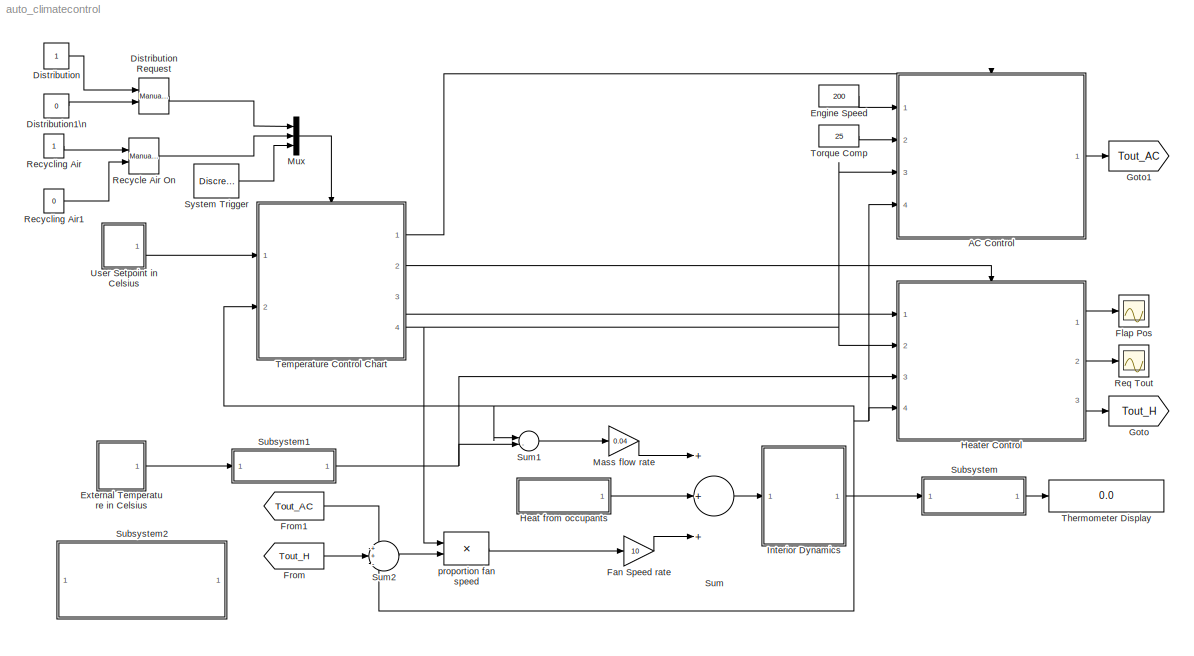
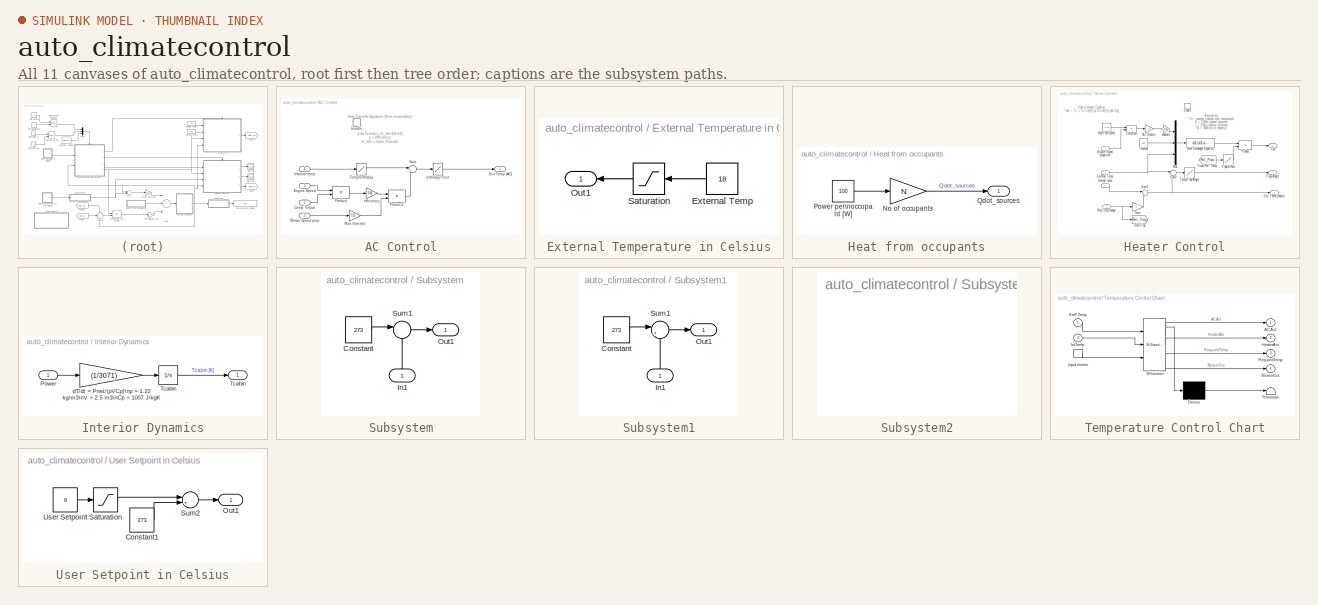
[diagram: thumbnail index - all 11 canvases of the model, root first then tree order]
MODEL auto_climatecontrol
KIND model
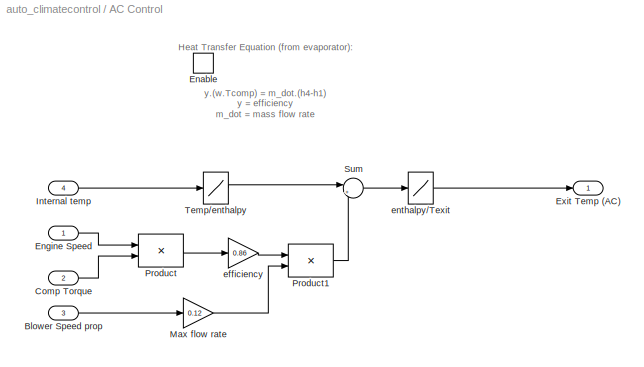
BLOCK [SubSystem] AC Control
  MinAlgLoopOccurrences = off
  Ports = [4, 1, 1]
  PropExecContextAcrossSSBoundary = on
  RTWSystemCode = Auto
  TreatAsAtomicUnit = on
BLOCK [Inport] AC Control/Blower Speed prop
  IconDisplay = Port number
  LatchInput = off
  Port = 3
BLOCK [Inport] AC Control/Comp Torque
  IconDisplay = Port number
  LatchInput = off
  Port = 2
BLOCK [EnablePort] AC Control/Enable
  Ports = []
  StatesWhenEnabling = reset
  ZeroCross = off
BLOCK [Inport] AC Control/Engine Speed
  IconDisplay = Port number
  LatchInput = off
  Port = 1
BLOCK [Outport] AC Control/Exit Temp (AC)
  IconDisplay = Port number
  InitialOutput = 0
  OutputWhenDisabled = reset
BLOCK [Inport] AC Control/Internal temp
  IconDisplay = Port number
  LatchInput = off
  Port = 4
BLOCK [Gain] AC Control/Max flow rate
  Gain = 0.12
BLOCK [Product] AC Control/Product
  Ports = [2, 1]
  RndMeth = Floor
BLOCK [Product] AC Control/Product1
  Inputs = */
  Ports = [2, 1]
  RndMeth = Floor
BLOCK [Sum] AC Control/Sum
  IconShape = round
  Inputs = |+-
  Ports = [2, 1]
BLOCK [Lookup] AC Control/Temp//enthalpy
  DialogController = Simulink.DDGSource
  InputValues = [220 230 240 250 260 270 280 285 290 295 300 305 310 315 320]
  OutputValues = [219.97 230.02 240.02 250.05 260.09 270.11 280.13 285.14 290.16 295.17 300.19 305.22 310.24 315.27 320.29]
BLOCK [Gain] AC Control/efficiency
  Gain = 0.86
BLOCK [Lookup] AC Control/enthalpy//Texit
  DialogController = Simulink.DDGSource
  InputValues = [ 219.97 230.02 240.02 250.05 260.09 270.11 280.13 285.14 290.16 295.17 300.19 305.22 310.24 315.27 320.29]
  OutputValues = [220 230 240 250 260 270 280 285 290 295 300 305 310 315 320]
BLOCK [Constant] Distribution 
BLOCK [Reference] Distribution Request  REF=simulink/Signal\nRouting/Manual Switch
  Ports = [2, 1]
  ShowPortLabels = on
  SourceBlock = simulink/Signal\nRouting/Manual Switch
  SourceType = Manual Switch
  action = 0
  sw = 0
BLOCK [Constant] Distribution1\n
  Value = 0
BLOCK [Constant] Engine Speed
  Value = 200
BLOCK [SubSystem] External Temperature in Celsius
  MaskDisplay = disp(x);
  MaskEnableString = on
  MaskIconFrame = on
  MaskIconOpaque = on
  MaskIconRotate = none
  MaskIconUnits = autoscale
  MaskInitialization = set_param('auto_climatecontrol/External Temperature in Celsius/External Temp','Value',num2str(x))\nexternal_temp_limit1\n
  MaskPromptString = Enter the external temperature
  MaskStyleString = edit
  MaskToolTipString = on
  MaskTunableValueString = on
  MaskType = variable
  MaskValueString = 18
  MaskVariables = x=@1;
  MaskVisibilityString = on
  MinAlgLoopOccurrences = off
  Ports = [0, 1]
  PropExecContextAcrossSSBoundary = on
  RTWSystemCode = Auto
  TreatAsAtomicUnit = off
BLOCK [Constant] External Temperature in Celsius/External Temp
  Value = 18
BLOCK [Outport] External Temperature in Celsius/Out1
  IconDisplay = Port number
BLOCK [Saturate] External Temperature in Celsius/Saturation
  LowerLimit = -99
  UpperLimit = 100
BLOCK [Gain] Fan Speed rate
  Gain = 10
BLOCK [Scope] Flap Pos
  DataFormat = StructureWithTime
  NumInputPorts = 1
  Ports = [1]
  YMax = 41.22
  YMin = 41.175
BLOCK [From] From
  CloseFcn = tagdialog Close
  DialogController = Simulink.DDGSource
  GotoTag = Tout_H
BLOCK [From] From1
  CloseFcn = tagdialog Close
  DialogController = Simulink.DDGSource
  GotoTag = Tout_AC
BLOCK [Goto] Goto
  DialogController = Simulink.DDGSource
  GotoTag = Tout_H
  TagVisibility = local
BLOCK [Goto] Goto1
  DialogController = Simulink.DDGSource
  GotoTag = Tout_AC
  TagVisibility = local
BLOCK [SubSystem] Heat from occupants
  AttributesFormatString = No. of occupants: %<N>
  MaskDisplay = disp('Heat Sources')
  MaskEnableString = on
  MaskIconFrame = on
  MaskIconOpaque = on
  MaskIconRotate = none
  MaskIconUnits = autoscale
  MaskPromptString = Number of occupants:
  MaskStyleString = edit
  MaskToolTipString = on
  MaskTunableValueString = on
  MaskType = Heat from occupants
  MaskValueString = 1
  MaskVariables = N=@1;
  MaskVisibilityString = on
  MinAlgLoopOccurrences = off
  Ports = [0, 1]
  PropExecContextAcrossSSBoundary = on
  RTWSystemCode = Auto
  TreatAsAtomicUnit = off
BLOCK [Gain] Heat from occupants/No of occupants
  Gain = N
BLOCK [Constant] Heat from occupants/Power per\noccupant [W]
  Value = 100
BLOCK [Outport] Heat from occupants/Qdot_sources
  IconDisplay = Port number
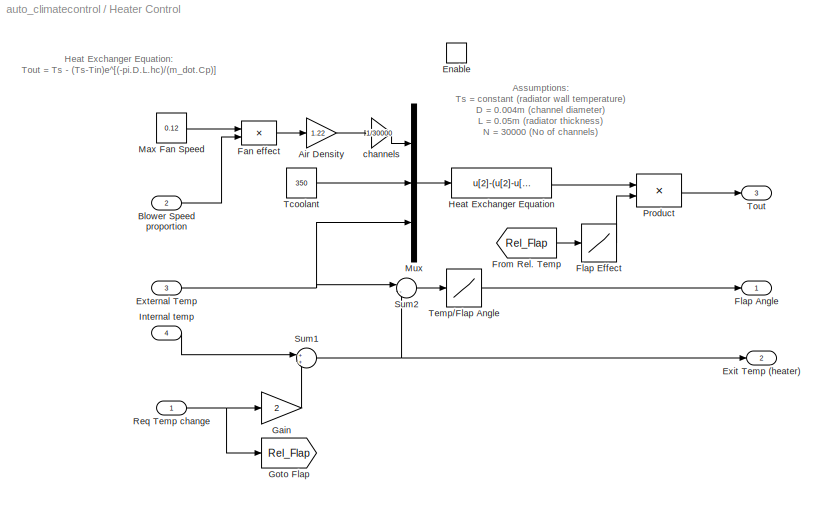
BLOCK [SubSystem] Heater Control
  MinAlgLoopOccurrences = off
  Ports = [4, 3, 1]
  PropExecContextAcrossSSBoundary = on
  RTWSystemCode = Auto
  TreatAsAtomicUnit = on
BLOCK [Gain] Heater Control/Air Density
  Gain = 1.22
BLOCK [Inport] Heater Control/Blower Speed proportion
  IconDisplay = Port number
  LatchInput = off
  Port = 2
BLOCK [EnablePort] Heater Control/Enable
  Ports = []
  StatesWhenEnabling = reset
  ZeroCross = off
BLOCK [Outport] Heater Control/Exit Temp (heater)
  IconDisplay = Port number
  InitialOutput = 0
  OutputWhenDisabled = reset
  Port = 2
BLOCK [Inport] Heater Control/External Temp
  IconDisplay = Port number
  LatchInput = off
  Port = 3
BLOCK [Product] Heater Control/Fan effect
  Ports = [2, 1]
  RndMeth = Floor
BLOCK [Outport] Heater Control/Flap Angle
  IconDisplay = Port number
  InitialOutput = 0
  OutputWhenDisabled = reset
BLOCK [Lookup] Heater Control/Flap Effect
  DialogController = Simulink.DDGSource
  InputValues = [0 3 5 10 50  90 100 200 ]
  OutputValues = [0 300 100  10 10  10 3 1]
BLOCK [From] Heater Control/From Rel. Temp
  CloseFcn = tagdialog Close
  DialogController = Simulink.DDGSource
  GotoTag = Rel_Flap
BLOCK [Gain] Heater Control/Gain
  Gain = 2
BLOCK [Goto] Heater Control/Goto Flap
  DialogController = Simulink.DDGSource
  GotoTag = Rel_Flap
  TagVisibility = local
BLOCK [Fcn] Heater Control/Heat Exchanger Equation
  Expr = u[2]-(u[2]-u[3])*exp(-(pi*0.004*0.05*23.8)/(u[1]*1007))
BLOCK [Inport] Heater Control/Internal temp
  IconDisplay = Port number
  LatchInput = off
  Port = 4
BLOCK [Constant] Heater Control/Max Fan Speed
  Value = 0.12
BLOCK [Mux] Heater Control/Mux
  DisplayOption = bar
  Inputs = 3
  Ports = [3, 1]
BLOCK [Product] Heater Control/Product
  Ports = [2, 1]
  RndMeth = Floor
BLOCK [Inport] Heater Control/Req Temp change
  IconDisplay = Port number
  LatchInput = off
  Port = 1
BLOCK [Sum] Heater Control/Sum1
  IconShape = round
  Ports = [2, 1]
BLOCK [Sum] Heater Control/Sum2
  IconShape = round
  Inputs = |-+
  Ports = [2, 1]
BLOCK [Constant] Heater Control/Tcoolant 
  Value = 350
BLOCK [Lookup] Heater Control/Temp//Flap Angle
  DialogController = Simulink.DDGSource
  InputValues = [0 10 20 30 40 50 60 75 100 200]
  OutputValues = [0 20 30 45 60 75 90 90 90 90]
BLOCK [Outport] Heater Control/Tout
  IconDisplay = Port number
  InitialOutput = 0
  OutputWhenDisabled = reset
  Port = 3
BLOCK [Gain] Heater Control/channels
  Gain = 1/30000
BLOCK [SubSystem] Interior Dynamics
  MaskDisplay = image(imread('car_int.jpg'))
  MaskIconFrame = off
  MaskIconOpaque = on
  MaskIconRotate = none
  MaskIconUnits = autoscale
  MaskType = Vehicle Cabin Dynamics
  MinAlgLoopOccurrences = off
  Ports = [1, 1]
  PropExecContextAcrossSSBoundary = on
  RTWSystemCode = Auto
  TreatAsAtomicUnit = off
BLOCK [Inport] Interior Dynamics/Power
  IconDisplay = Port number
  LatchInput = off
  Port = 1
BLOCK [Integrator] Interior Dynamics/Tcabin
  InitialCondition = 291
  Ports = [1, 1]
  ZeroCross = off
BLOCK [Outport] Interior Dynamics/Tcabin 
  IconDisplay = Port number
BLOCK [Gain] Interior Dynamics/dT//dt = Pnet//(pVCp)\np = 1.22 kg//m3\nV = 2.5 m3\nCp = 1007 J//kgK
  Gain = (1/3071)
BLOCK [Gain] Mass flow rate
  Gain = 0.04
BLOCK [Mux] Mux
  DisplayOption = bar
  Inputs = 3
  Ports = [3, 1]
BLOCK [Reference] Recycle Air On  REF=simulink/Signal\nRouting/Manual Switch
  Ports = [2, 1]
  ShowPortLabels = on
  SourceBlock = simulink/Signal\nRouting/Manual Switch
  SourceType = Manual Switch
  action = 0
  sw = 0
BLOCK [Constant] Recycling Air
BLOCK [Constant] Recycling Air1
  Value = 0
BLOCK [Scope] Req Tout
  DataFormat = StructureWithTime
  NumInputPorts = 1
  Ports = [1]
  SaveName = ScopeData1
  YMax = 41.22
  YMin = 41.175
BLOCK [SubSystem] Subsystem
  MaskDisplay = disp('Kelvin to Celsius')
  MaskIconFrame = on
  MaskIconOpaque = on
  MaskIconRotate = none
  MaskIconUnits = autoscale
  MinAlgLoopOccurrences = off
  Ports = [1, 1]
  PropExecContextAcrossSSBoundary = on
  RTWSystemCode = Auto
  TreatAsAtomicUnit = off
BLOCK [Constant] Subsystem/Constant
  Value = 273
BLOCK [Inport] Subsystem/In1
  IconDisplay = Port number
  LatchInput = off
  Port = 1
BLOCK [Outport] Subsystem/Out1
  IconDisplay = Port number
BLOCK [Sum] Subsystem/Sum1
  IconShape = round
  Inputs = |-+
  Ports = [2, 1]
BLOCK [SubSystem] Subsystem1
  MaskDisplay = disp('Celsius to Kelvin')
  MaskIconFrame = on
  MaskIconOpaque = on
  MaskIconRotate = none
  MaskIconUnits = autoscale
  MinAlgLoopOccurrences = off
  Ports = [1, 1]
  PropExecContextAcrossSSBoundary = on
  RTWSystemCode = Auto
  TreatAsAtomicUnit = off
BLOCK [Constant] Subsystem1/Constant
  Value = 273
BLOCK [Inport] Subsystem1/In1
  IconDisplay = Port number
  LatchInput = off
  Port = 1
BLOCK [Outport] Subsystem1/Out1
  IconDisplay = Port number
BLOCK [Sum] Subsystem1/Sum1
  IconShape = round
  Inputs = |++
  Ports = [2, 1]
BLOCK [SubSystem] Subsystem2
  AttributesFormatString = \\n
  MaskDisplay = disp('Double click\\nhere for\\n Model Information')
  MaskIconFrame = on
  MaskIconOpaque = on
  MaskIconRotate = none
  MaskIconUnits = autoscale
  MaskInitialization = % t1=matlabroot;\n%cd(t1)\n%test123=which('docCC_file.html','-all');\n%web(char(test123));\n
  MinAlgLoopOccurrences = off
  OpenFcn = docfile=which('auto_climatecontrol.html','-all');\nweb(char(docfile));
  Ports = []
  PropExecContextAcrossSSBoundary = on
  RTWSystemCode = Auto
  TreatAsAtomicUnit = off
BLOCK [Sum] Sum
  Inputs = +++
  Ports = [3, 1]
BLOCK [Sum] Sum1
  IconShape = round
  Inputs = |-+
  Ports = [2, 1]
BLOCK [Sum] Sum2
  IconShape = round
  Inputs = ++-
  Ports = [3, 1]
BLOCK [DiscretePulseGenerator] System Trigger
  Period = 1/60
  Ports = [0, 1]
  PulseType = Time based
  PulseWidth = 50
BLOCK [SubSystem] Temperature Control Chart
  MaskDescription = Stateflow diagram
  MaskDisplay = plot(sf('Private','sfblk','xIcon'),sf('Private','sfblk','yIcon'));text(0.5,0,sf('Private', 'sfblk', 'tIcon'),'HorizontalAl','Center','VerticalAl','Bottom');
  MaskIconFrame = off
  MaskIconOpaque = off
  MaskIconRotate = none
  MaskIconUnits = autoscale
  MaskSelfModifiable = on
  MaskType = Stateflow
  MinAlgLoopOccurrences = off
  Ports = [2, 4, 0, 1]
  PropExecContextAcrossSSBoundary = on
  RTWSystemCode = Auto
  TreatAsAtomicUnit = on
BLOCK [Demux] Temperature Control Chart/ Demux 
  Outputs = 1
  Ports = [1, 1]
BLOCK [S-Function] Temperature Control Chart/ SFunction 
  FunctionName = sf_sfun
  PortCounts = [3 5]
  Ports = [3, 5]
  Tag = Stateflow S-Function auto_climatecontrol 1
BLOCK [Terminator] Temperature Control Chart/ Terminator 
BLOCK [TriggerPort] Temperature Control Chart/ input events 
  Ports = [0, 1]
  ShowOutputPort = on
  TriggerType = either
  ZeroCross = off
BLOCK [Outport] Temperature Control Chart/ACAct
  IconDisplay = Port number
BLOCK [Outport] Temperature Control Chart/BlowerOut
  IconDisplay = Port number
  Port = 4
BLOCK [Outport] Temperature Control Chart/HeaterAct
  IconDisplay = Port number
  Port = 2
BLOCK [Inport] Temperature Control Chart/IntTemp
  IconDisplay = Port number
  LatchInput = off
  Port = 2
BLOCK [Outport] Temperature Control Chart/RequiredTemp
  IconDisplay = Port number
  Port = 3
BLOCK [Inport] Temperature Control Chart/SetPTemp
  IconDisplay = Port number
  LatchInput = off
  Port = 1
BLOCK [Display] Thermometer Display
  Decimation = 1
  Ports = [1]
BLOCK [Constant] Torque Comp
  Value = 25
BLOCK [SubSystem] User Setpoint in Celsius
  MaskDisplay = disp(num2str(USet))
  MaskEnableString = on
  MaskIconFrame = on
  MaskIconOpaque = on
  MaskIconRotate = none
  MaskIconUnits = autoscale
  MaskInitialization = set_param('auto_climatecontrol/User Setpoint in Celsius/User Setpoint','Value',num2str(USet))
  MaskPromptString = Enter the Temperature you require
  MaskStyleString = edit
  MaskToolTipString = on
  MaskTunableValueString = on
  MaskValueString = 9
  MaskVariables = USet=@1;
  MaskVisibilityString = on
  MinAlgLoopOccurrences = off
  Ports = [0, 1]
  PropExecContextAcrossSSBoundary = on
  RTWSystemCode = Auto
  TreatAsAtomicUnit = off
BLOCK [Constant] User Setpoint in Celsius/Constant1
  Value = 273
BLOCK [Outport] User Setpoint in Celsius/Out1
  IconDisplay = Port number
BLOCK [Saturate] User Setpoint in Celsius/Saturation
  LowerLimit = -99
  UpperLimit = 100
BLOCK [Sum] User Setpoint in Celsius/Sum2
  IconShape = round
  Inputs = |++
  Ports = [2, 1]
BLOCK [Constant] User Setpoint in Celsius/User Setpoint
  Value = 9
BLOCK [Product] proportion fan speed
  Ports = [2, 1]
  RndMeth = Floor
ANNOTATION AC Control: Heat Transfer Equation (from evaporator):\n\ny.(w.Tcomp) = m_dot.(h4-h1)\n\ny = efficiency\nm_dot = mass flow rate\nw = speed of the engine\nTcomp = compressor torque\nh4, h1 = enthalpy
ANNOTATION Heater Control: Assumptions:\nTs = constant (radiator wall temperature) \nD = 0.004m (channel diameter)\nL = 0.05m (radiator thickness)\nN = 30000 (No of channels)\n\nk = 0.026 W/mK = constant (thermal conductivity of air)\nCp = 1007 J/kgK = constant (specific heat of air)\nLaminar flow (hc = 3.66(k/D) = 23.8 W/m2K )
ANNOTATION Heater Control: Heat Exchanger Equation:\nTout = Ts - (Ts-Tin)e^[(-pi.D.L.hc)/(m_dot.Cp)]
LINE AC Control/Blower Speed prop:1 -> AC Control/Max flow rate:1
LINE AC Control/Comp Torque:1 -> AC Control/Product:2
LINE AC Control/Engine Speed:1 -> AC Control/Product:1
LINE AC Control/Internal temp:1 -> AC Control/Temp//enthalpy:1
LINE AC Control/Max flow rate:1 -> AC Control/Product1:2
LINE AC Control/Product1:1 -> AC Control/Sum:2
LINE AC Control/Product:1 -> AC Control/efficiency:1
LINE AC Control/Sum:1 -> AC Control/enthalpy//Texit:1
LINE AC Control/Temp//enthalpy:1 -> AC Control/Sum:1
LINE AC Control/efficiency:1 -> AC Control/Product1:1
LINE AC Control/enthalpy//Texit:1 -> AC Control/Exit Temp (AC):1
LINE AC Control:1 -> Goto1:1
LINE Distribution :1 -> Distribution Request:1
LINE Distribution Request:1 -> Mux:1
LINE Distribution1\n:1 -> Distribution Request:2
LINE Engine Speed:1 -> AC Control:1
LINE External Temperature in Celsius/External Temp:1 -> External Temperature in Celsius/Saturation:1
LINE External Temperature in Celsius/Saturation:1 -> External Temperature in Celsius/Out1:1
LINE External Temperature in Celsius:1 -> Subsystem1:1
LINE Fan Speed rate:1 -> Sum:3
LINE From1:1 -> Sum2:1
LINE From:1 -> Sum2:2
LINE Heat from occupants/No of occupants:1 -> Heat from occupants/Qdot_sources:1
LINE Heat from occupants/Power per\noccupant [W]:1 -> Heat from occupants/No of occupants:1
LINE Heat from occupants:1 -> Sum:2
LINE Heater Control/Air Density:1 -> Heater Control/channels:1
LINE Heater Control/Blower Speed proportion:1 -> Heater Control/Fan effect:2
NET Heater Control/External Temp:1 -> Heater Control/Mux:3, Heater Control/Sum2:1
LINE Heater Control/Fan effect:1 -> Heater Control/Air Density:1
LINE Heater Control/Flap Effect:1 -> Heater Control/Product:2
LINE Heater Control/From Rel. Temp:1 -> Heater Control/Flap Effect:1
LINE Heater Control/Gain:1 -> Heater Control/Sum1:2
LINE Heater Control/Heat Exchanger Equation:1 -> Heater Control/Product:1
LINE Heater Control/Internal temp:1 -> Heater Control/Sum1:1
LINE Heater Control/Max Fan Speed:1 -> Heater Control/Fan effect:1
LINE Heater Control/Mux:1 -> Heater Control/Heat Exchanger Equation:1
LINE Heater Control/Product:1 -> Heater Control/Tout:1
NET Heater Control/Req Temp change:1 -> Heater Control/Gain:1, Heater Control/Goto Flap:1
NET Heater Control/Sum1:1 -> Heater Control/Exit Temp (heater):1, Heater Control/Sum2:2
LINE Heater Control/Sum2:1 -> Heater Control/Temp//Flap Angle:1
LINE Heater Control/Tcoolant :1 -> Heater Control/Mux:2
LINE Heater Control/Temp//Flap Angle:1 -> Heater Control/Flap Angle:1
LINE Heater Control/channels:1 -> Heater Control/Mux:1
LINE Heater Control:1 -> Flap Pos:1
LINE Heater Control:2 -> Req Tout:1
LINE Heater Control:3 -> Goto:1
LINE Interior Dynamics/Power:1 -> Interior Dynamics/dT//dt = Pnet//(pVCp)\np = 1.22 kg//m3\nV = 2.5 m3\nCp = 1007 J//kgK:1
LINE Interior Dynamics/Tcabin:1 -> Interior Dynamics/Tcabin :1
LINE Interior Dynamics/dT//dt = Pnet//(pVCp)\np = 1.22 kg//m3\nV = 2.5 m3\nCp = 1007 J//kgK:1 -> Interior Dynamics/Tcabin:1
NET Interior Dynamics:1 -> AC Control:4, Heater Control:4, Subsystem:1, Sum1:1, Sum2:3, Temperature Control Chart:2
LINE Mass flow rate:1 -> Sum:1
LINE Mux:1 -> Temperature Control Chart:trigger
LINE Recycle Air On:1 -> Mux:2
LINE Recycling Air1:1 -> Recycle Air On:2
LINE Recycling Air:1 -> Recycle Air On:1
LINE Subsystem/Constant:1 -> Subsystem/Sum1:1
LINE Subsystem/In1:1 -> Subsystem/Sum1:2
LINE Subsystem/Sum1:1 -> Subsystem/Out1:1
LINE Subsystem1/Constant:1 -> Subsystem1/Sum1:1
LINE Subsystem1/In1:1 -> Subsystem1/Sum1:2
LINE Subsystem1/Sum1:1 -> Subsystem1/Out1:1
NET Subsystem1:1 -> Heater Control:3, Sum1:2
LINE Subsystem:1 -> Thermometer Display:1
LINE Sum1:1 -> Mass flow rate:1
LINE Sum2:1 -> proportion fan speed:2
LINE Sum:1 -> Interior Dynamics:1
LINE System Trigger:1 -> Mux:3
LINE Temperature Control Chart/ Demux :1 -> Temperature Control Chart/ Terminator :1
LINE Temperature Control Chart/ SFunction :1 -> Temperature Control Chart/ Demux :1
LINE Temperature Control Chart/ SFunction :2 -> Temperature Control Chart/ACAct:1
LINE Temperature Control Chart/ SFunction :3 -> Temperature Control Chart/HeaterAct:1
LINE Temperature Control Chart/ SFunction :4 -> Temperature Control Chart/RequiredTemp:1
LINE Temperature Control Chart/ SFunction :5 -> Temperature Control Chart/BlowerOut:1
LINE Temperature Control Chart/ input events :1 -> Temperature Control Chart/ SFunction :3
LINE Temperature Control Chart/IntTemp:1 -> Temperature Control Chart/ SFunction :2
LINE Temperature Control Chart/SetPTemp:1 -> Temperature Control Chart/ SFunction :1
LINE Temperature Control Chart:1 -> AC Control:enable
LINE Temperature Control Chart:2 -> Heater Control:enable
LINE Temperature Control Chart:3 -> Heater Control:1
NET Temperature Control Chart:4 -> AC Control:3, Heater Control:2, proportion fan speed:1
LINE Torque Comp:1 -> AC Control:2
LINE User Setpoint in Celsius/Constant1:1 -> User Setpoint in Celsius/Sum2:2
LINE User Setpoint in Celsius/Saturation:1 -> User Setpoint in Celsius/Sum2:1
LINE User Setpoint in Celsius/Sum2:1 -> User Setpoint in Celsius/Out1:1
LINE User Setpoint in Celsius/User Setpoint:1 -> User Setpoint in Celsius/Saturation:1
LINE User Setpoint in Celsius:1 -> Temperature Control Chart:1
LINE proportion fan speed:1 -> Fan Speed rate:1
note: NET lines group one-source signal fan-out (src -> all destinations, sorted); 1:1 wires keep LINE
CHART Temperature Control Chart states=21 transitions=26
  STATE_LABEL 'Blower_1\\nentry:BlowerOut=0.2;'
  STATE_LABEL 'Blower_2\\nentry:BlowerOut=0.4;'
  STATE_LABEL 'Blower_3\\nentry:BlowerOut=0.6;'
  STATE_LABEL 'Blower_off\\nentry:BlowerOut=0.0;'
  STATE_LABEL 'Blower_5\\nentry:BlowerOut=1.0;'
  STATE_LABEL 'Blower_4\\nentry:BlowerOut=0.8;'
  STATE_LABEL 'Blower\\nduring:setpoint_calc();'
  STATE_LABEL 'Recyc_Air'
  STATE_LABEL 'Recyc_on'
  STATE_LABEL 'Recyc_off'
  STATE_LABEL 'Heater_AC'
  STATE_LABEL 'H_offAC_off'
  STATE_LABEL 'HeaterAct'
  STATE_LABEL 'ACAct'
  STATE_LABEL 'AirDist'
  STATE_LABEL 'Face'
  STATE_LABEL 'Feet'
  STATE_LABEL 'Defrost'
  STATE_LABEL 'Blower_on'
  STATE_LABEL 'b = in_temp_range(minTemp,maxTemp)'
  STATE_LABEL 'setpoint_calc()'
